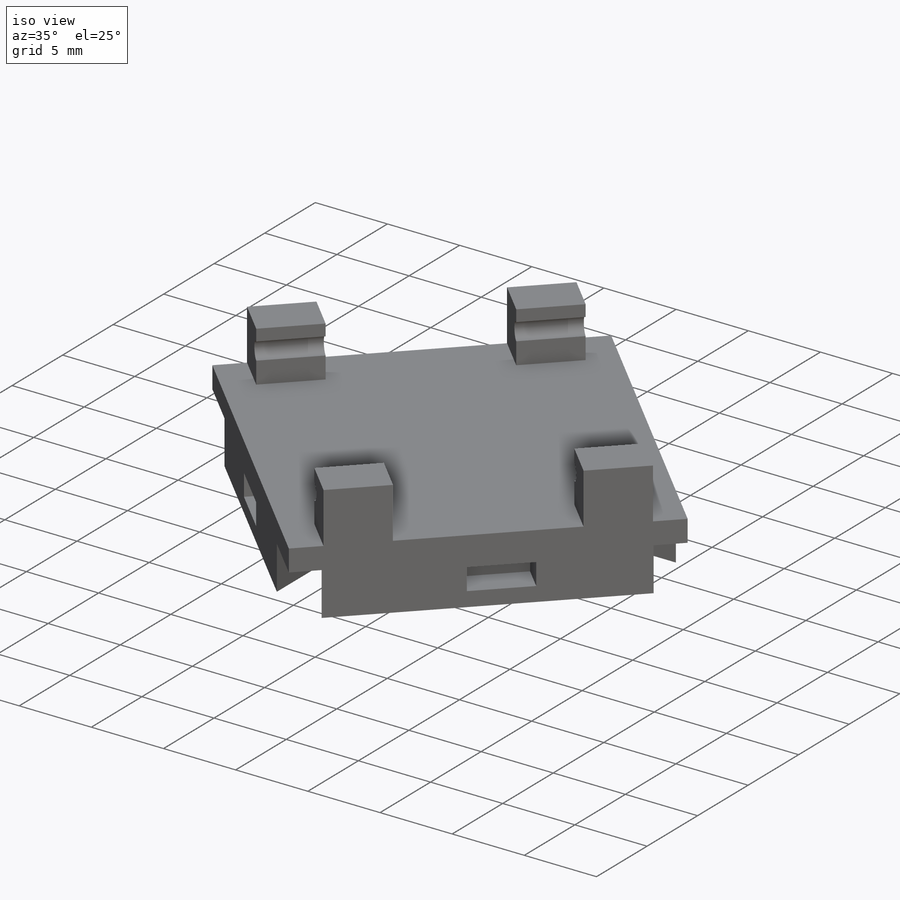
[diagram: iso view]
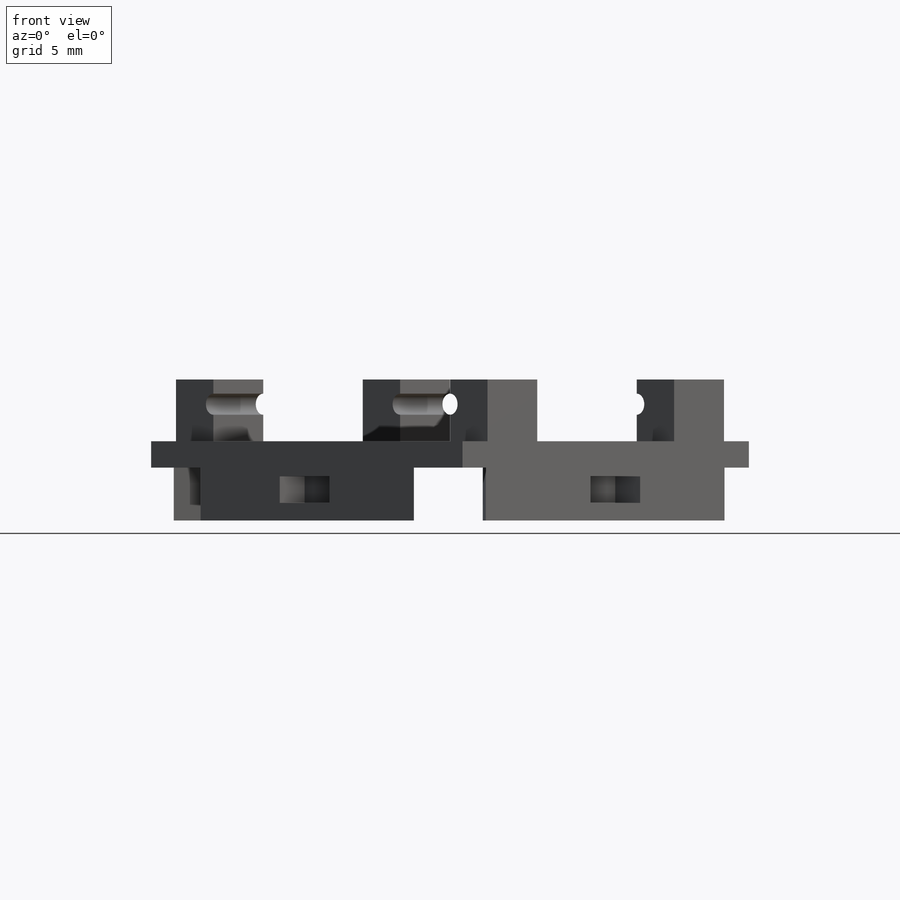
[diagram: front view]
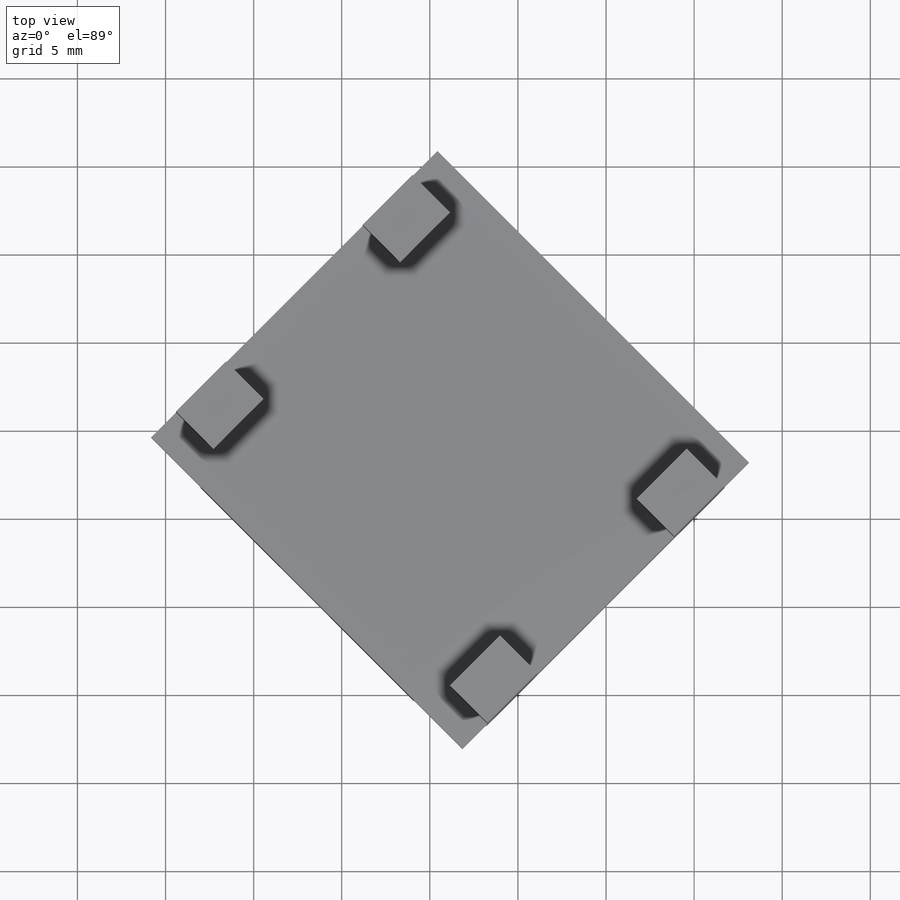
[diagram: top view]
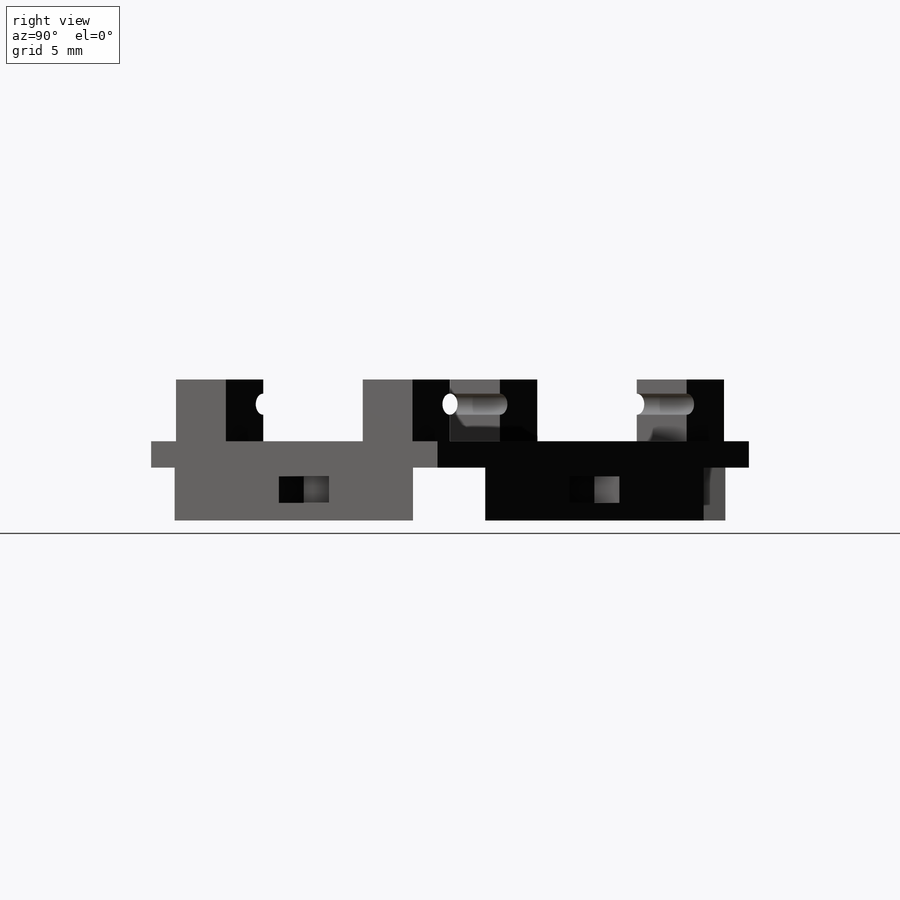
[diagram: right view]
SOLIDWORKS PART (.sldprt)
format: sldprt  version: not decoded by parser v0  size: 355,840 bytes
history: native  units: mm
features: sketch x9, cut_extrude x7, plane x7, extrude x2, material x1 (+13 scaffold rows collapsed)
feature tree (39):
  scaffold x13  (default folders/planes/origin — collapsed)
  material  "Material <not specified>"
  sketch  "Sketch2"  dims[D1=7.25mm]
  extrude  "Boss-Extrude2"  Depth=4.5mm
  sketch  "Sketch4"  dims[c1.D1=~13.67767mm c1.D2=~12.253048mm c1.D3=4.0mm c1.D4=~13.67767mm c1.D5=~12.253048mm c1.D6=~12.39388mm c1.D7=~13.67767mm c1.D8=~13.67767mm c1.D9=~12.253048mm c1.D10=4.0mm c1.D11=~13.67767mm c2.D11=~0.651025deg c2.D12=4.0mm c3.D11=~13.67767mm c4.D11=~0.651025deg c5.D11=~12.39388mm c6.D11=~0.651025deg c6.D1=~13.67767mm c7.D1=45.0deg c8.D1=2.05mm c8.D2=2.05mm c8.D3=2.05mm c8.D4=2.05mm c8.D5=2.05mm c8.D6=2.05mm c8.D7=2.05mm c8.D8=2.05mm]
  cut_extrude  "Cut-Extrude1"  Depth=3mm
  plane  "Plane2"  Offset=0mm
  sketch  "Sketch5"  dims[D1=3.0mm D2=4.0mm D3=2.0mm D4=3.0mm D5=4.0mm D6=3.0mm D7=3.0mm D8=3.0mm D9=4.0mm D10=3.0mm D11=3.0mm D12=4.0mm D13=3.0mm D14=2.0mm D15=2.0mm D16=2.0mm]
  extrude  "Boss-Extrude3"  Depth=3.5mm
  plane  "Plane3"  Offset=0mm
  sketch  "Sketch6"  dims[c1.D1=0.6mm c1.D2=0.9mm c2.D1=1.0mm c2.D2=1.5mm c2.D3=0.0mm]
  cut_extrude  "Cut-Extrude2"  [1 undecoded]
  plane  "Plane4"  Offset=0mm
  sketch  "Sketch7"  dims[D1=0.6mm D2=1.5mm D3=0.0mm]
  cut_extrude  "Cut-Extrude5"  [1 undecoded]
  plane  "Plane5"  Offset=0mm
  sketch  "Sketch10"  dims[D1=1.0mm D2=4.0mm D3=1.5mm D4=8.765mm]
  cut_extrude  "Cut-Extrude6"  Depth=2mm
  plane  "Plane6"  Offset=0mm
  sketch  "Sketch11"  dims[D1=1.5mm D2=4.0mm D3=1.0mm D4=8.765mm]
  cut_extrude  "Cut-Extrude7"  Depth=2mm
  plane  "Plane7"  Offset=0mm
  sketch  "Sketch12"  dims[D1=1.5mm D2=4.0mm D3=1.0mm D4=8.765mm]
  cut_extrude  "Cut-Extrude8"  Depth=2mm
  plane  "Plane8"  Offset=0mm
  sketch  "Sketch13"  dims[D1=4.0mm D2=1.5mm D3=1.0mm D4=8.765mm]
  cut_extrude  "Cut-Extrude9"  Depth=2mm
decode coverage: 16 of 18 modeling features carry decoded parameters
note: ~ marks probable driven/reference dimensions
note: 2 parameter values undecoded
note: suppression state not decoded; provenance and decode notes live in map.json
